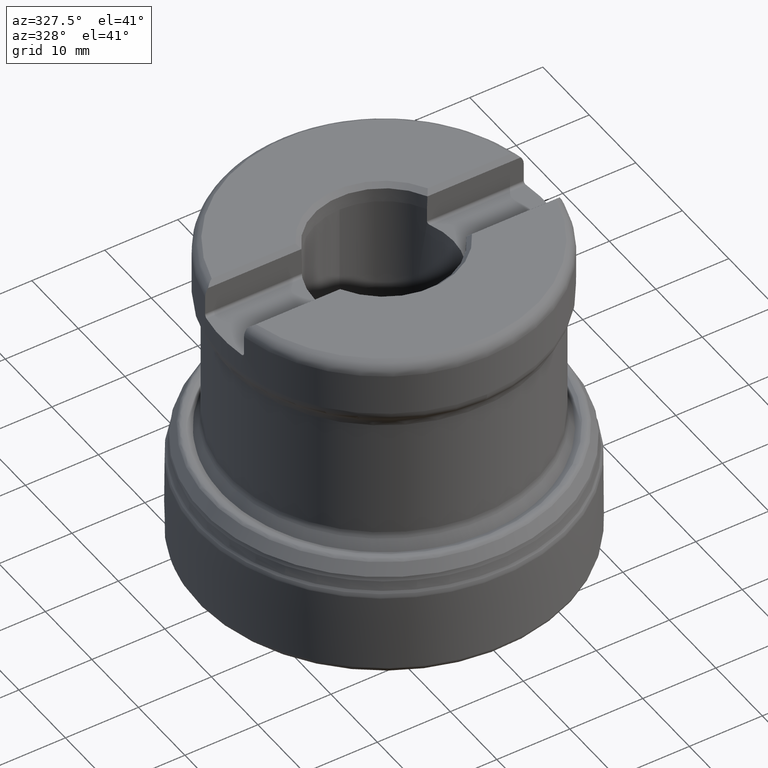
[diagram: clean part render]
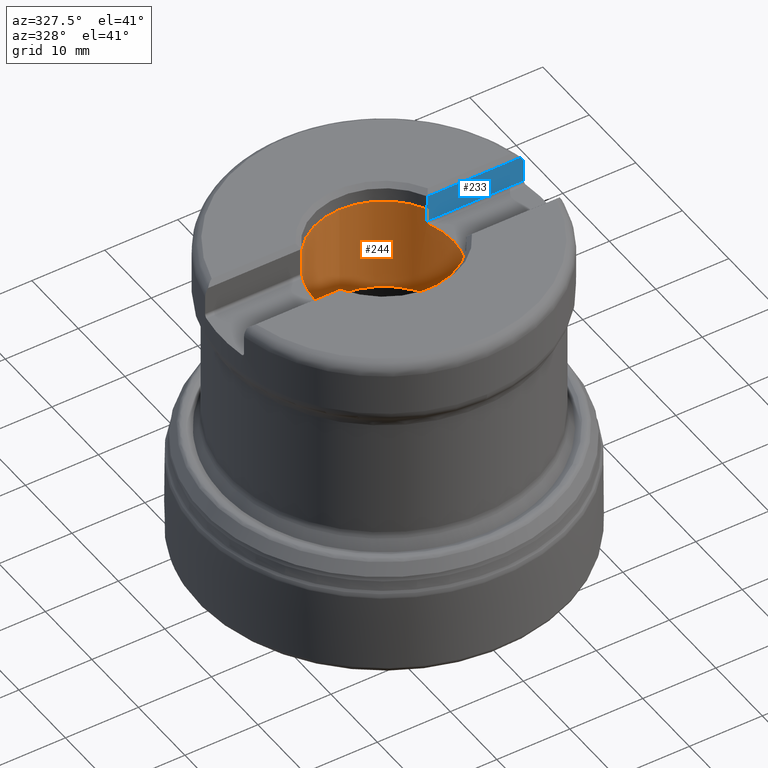
[diagram: same view with the hole feature highlighted: cylindrical wall and planar end face, labeled with their STEP entity ids]
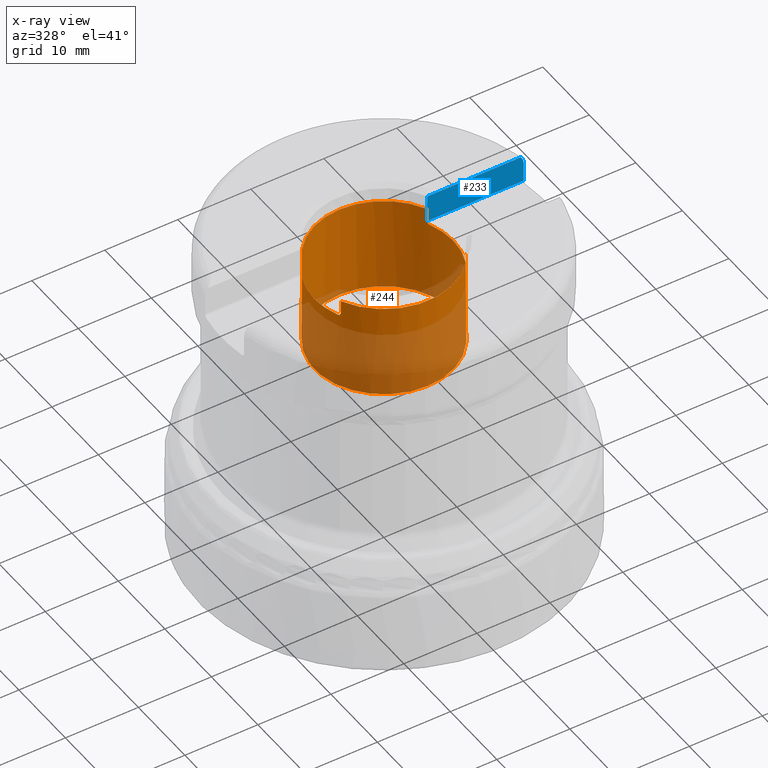
[diagram: x-ray of the same camera — body ghosted, the hole faces saturated]
A machine part, auxiliary view. The highlighted faces form one hole feature of diameter 19.05 mm: the cylindrical wall (entity #244, orange) and its adjacent planar end face (entity #233, blue) — they share a circular edge in the B-rep.
The next image is the same camera in x-ray (body ghosted, the hole faces saturated) — the bore reads through the body.
Wall:
#244=ADVANCED_FACE('',(#370,#371),#298,.F.);
#298=CYLINDRICAL_SURFACE('',#1184,9.525);
#311=LINE('',#2021,#338);
#314=LINE('',#2035,#341);
#320=LINE('',#2118,#347);
#325=LINE('',#2129,#352);
#338=VECTOR('',#1315,1.);
#341=VECTOR('',#1320,1.);
#347=VECTOR('',#1352,1.);
#352=VECTOR('',#1363,1.);
#370=FACE_BOUND('',#484,.T.);
#371=FACE_BOUND('',#485,.T.);
#484=EDGE_LOOP('',(#679));
#485=EDGE_LOOP('',(#680,#681,#682,#683,#684,#685,#686,#687,#688,#689,#690,
#691));
#679=ORIENTED_EDGE('',*,*,#969,.F.);
#680=ORIENTED_EDGE('',*,*,#942,.F.);
#681=ORIENTED_EDGE('',*,*,#951,.T.);
#682=ORIENTED_EDGE('',*,*,#966,.F.);
#683=ORIENTED_EDGE('',*,*,#967,.T.);
#684=ORIENTED_EDGE('',*,*,#962,.F.);
#685=ORIENTED_EDGE('',*,*,#968,.T.);
#686=ORIENTED_EDGE('',*,*,#938,.F.);
#687=ORIENTED_EDGE('',*,*,#946,.T.);
#688=ORIENTED_EDGE('',*,*,#960,.F.);
#689=ORIENTED_EDGE('',*,*,#956,.T.);
#690=ORIENTED_EDGE('',*,*,#953,.F.);
#691=ORIENTED_EDGE('',*,*,#955,.T.);
#841=VERTEX_POINT('',#2020);
#842=VERTEX_POINT('',#2022);
#844=VERTEX_POINT('',#2034);
#845=VERTEX_POINT('',#2036);
#847=VERTEX_POINT('',#2048);
#851=VERTEX_POINT('',#2064);
#852=VERTEX_POINT('',#2068);
#853=VERTEX_POINT('',#2070);
#854=VERTEX_POINT('',#2109);
#856=VERTEX_POINT('',#2121);
#857=VERTEX_POINT('',#2123);
#858=VERTEX_POINT('',#2128);
#859=VERTEX_POINT('',#2169);
#938=EDGE_CURVE('',#841,#842,#311,.T.);
#942=EDGE_CURVE('',#844,#845,#314,.T.);
#946=EDGE_CURVE('',#841,#847,#1030,.T.);
#951=EDGE_CURVE('',#844,#851,#1032,.T.);
#953=EDGE_CURVE('',#852,#853,#1033,.T.);
#955=EDGE_CURVE('',#852,#845,#1103,.T.);
#956=EDGE_CURVE('',#854,#853,#1104,.T.);
#960=EDGE_CURVE('',#854,#847,#320,.T.);
#962=EDGE_CURVE('',#856,#857,#1034,.T.);
#966=EDGE_CURVE('',#858,#851,#325,.T.);
#967=EDGE_CURVE('',#858,#857,#1106,.T.);
#968=EDGE_CURVE('',#856,#842,#1107,.T.);
#969=EDGE_CURVE('',#859,#859,#1035,.T.);
#1030=CIRCLE('',#1166,9.525);
#1032=CIRCLE('',#1171,9.525);
#1033=CIRCLE('',#1173,9.525);
#1034=CIRCLE('',#1178,9.525);
#1035=CIRCLE('',#1183,9.525);
#1103=B_SPLINE_CURVE_WITH_KNOTS('',3,(#2073,#2074,#2075,#2076,#2077,#2078,
#2079,#2080,#2081,#2082,#2083,#2084,#2085,#2086,#2087,#2088,#2089,#2090,
#2091),.UNSPECIFIED.,.F.,.F.,(4,3,3,3,3,3,4),(0.,0.0386594743957462,0.269044895788536,
0.48008110636278,0.673449817538789,0.857853975453466,1.),.UNSPECIFIED.);
#1104=B_SPLINE_CURVE_WITH_KNOTS('',3,(#2093,#2094,#2095,#2096,#2097,#2098,
#2099,#2100,#2101,#2102,#2103,#2104,#2105,#2106,#2107,#2108),
 .UNSPECIFIED.,.F.,.F.,(4,3,3,3,3,4),(0.,0.108413031410189,0.323007237368325,
0.558707803919921,0.801825649246487,1.),.UNSPECIFIED.);
#1106=B_SPLINE_CURVE_WITH_KNOTS('',3,(#2131,#2132,#2133,#2134,#2135,#2136,
#2137,#2138,#2139,#2140,#2141,#2142,#2143,#2144,#2145,#2146,#2147,#2148,
#2149),.UNSPECIFIED.,.F.,.F.,(4,3,3,3,3,3,4),(0.,0.0466914832213066,0.253760914020809,
0.483837973279793,0.726357143929704,0.965681344552278,1.),.UNSPECIFIED.);
#1107=B_SPLINE_CURVE_WITH_KNOTS('',3,(#2151,#2152,#2153,#2154,#2155,#2156,
#2157,#2158,#2159,#2160,#2161,#2162,#2163,#2164,#2165,#2166),
 .UNSPECIFIED.,.F.,.F.,(4,3,3,3,3,4),(0.,0.206937369334465,0.42350928604287,
0.620977371917134,0.810210906928369,1.),.UNSPECIFIED.);
#1166=AXIS2_PLACEMENT_3D('',#2049,#1326,#1327);
#1171=AXIS2_PLACEMENT_3D('',#2065,#1336,#1337);
#1173=AXIS2_PLACEMENT_3D('',#2069,#1341,#1342);
#1178=AXIS2_PLACEMENT_3D('',#2122,#1356,#1357);
#1183=AXIS2_PLACEMENT_3D('',#2168,#1370,#1371);
#1184=AXIS2_PLACEMENT_3D('',#2170,#1372,#1373);
#1315=DIRECTION('',(0.,-1.17145536458252E-15,-1.));
#1320=DIRECTION('',(0.,-1.17145536458252E-15,-1.));
#1326=DIRECTION('',(0.,1.17145536458252E-15,1.));
#1327=DIRECTION('',(0.,1.,-1.45698559662094E-15));
#1336=DIRECTION('',(0.,1.17145536458252E-15,1.));
#1337=DIRECTION('',(0.,1.,-1.45698559662094E-15));
#1341=DIRECTION('',(0.,-1.17145536458252E-15,-1.));
#1342=DIRECTION('',(0.,-1.,1.45698559662094E-15));
#1352=DIRECTION('',(0.,1.17145536458252E-15,1.));
#1356=DIRECTION('',(0.,-1.17145536458252E-15,-1.));
#1357=DIRECTION('',(0.,-1.,1.45698559662094E-15));
#1363=DIRECTION('',(0.,1.17145536458252E-15,1.));
#1370=DIRECTION('',(0.,1.17145536458252E-15,1.));
#1371=DIRECTION('',(0.,1.,-1.09273919746571E-15));
#1372=DIRECTION('',(0.,-1.17145536458252E-15,-1.));
#1373=DIRECTION('',(0.,1.,-1.45698559662094E-15));
#2020=CARTESIAN_POINT('',(-8.5612499087458,-4.17499999999995,41.95));
#2021=CARTESIAN_POINT('',(-8.5612499087458,-4.17499999999994,44.65));
#2022=CARTESIAN_POINT('',(-8.5612499087458,-4.17499999999995,40.1));
#2034=CARTESIAN_POINT('',(8.5612499087458,4.17500000000005,41.95));
#2035=CARTESIAN_POINT('',(8.5612499087458,4.17500000000005,44.65));
#2036=CARTESIAN_POINT('',(8.5612499087458,4.17500000000005,40.1));
#2048=CARTESIAN_POINT('',(8.5612499087458,-4.17499999999995,41.95));
#2049=CARTESIAN_POINT('',(0.,4.91425525442369E-14,41.95));
#2064=CARTESIAN_POINT('',(-8.5612499087458,4.17500000000005,41.95));
#2065=CARTESIAN_POINT('',(0.,4.91425525442369E-14,41.95));
#2068=CARTESIAN_POINT('',(8.74499857061166,3.77500000000005,39.7));
#2069=CARTESIAN_POINT('',(0.,4.65067779739262E-14,39.7));
#2070=CARTESIAN_POINT('',(8.74499857061166,-3.77499999999995,39.7));
#2073=CARTESIAN_POINT('',(8.74499857061166,3.77500000000005,39.7));
#2074=CARTESIAN_POINT('',(8.74161773161384,3.78283190257048,39.7));
#2075=CARTESIAN_POINT('',(8.73822513158495,3.79066209357223,39.7002301556307));
#2076=CARTESIAN_POINT('',(8.73482820236741,3.79847354540312,39.700689353177));
#2077=CARTESIAN_POINT('',(8.71475838019075,3.84462536051246,39.7034023956065));
#2078=CARTESIAN_POINT('',(8.69422372993682,3.89079669083713,39.7143109342927));
#2079=CARTESIAN_POINT('',(8.67485314955539,3.93351596331441,39.7327498272641));
#2080=CARTESIAN_POINT('',(8.65708541813785,3.97270036278943,39.7496629652033));
#2081=CARTESIAN_POINT('',(8.63988011341599,4.00991051466912,39.7733156854881));
#2082=CARTESIAN_POINT('',(8.62466260945896,4.04237799729329,39.8024953671563));
#2083=CARTESIAN_POINT('',(8.61070943589313,4.07214795310076,39.8292506855096));
#2084=CARTESIAN_POINT('',(8.59812510101883,4.09858614795706,39.8612783314609));
#2085=CARTESIAN_POINT('',(8.58808726251802,4.11951237058175,39.8967483665104));
#2086=CARTESIAN_POINT('',(8.57851751559993,4.1394627467961,39.9305643378047));
#2087=CARTESIAN_POINT('',(8.5710600955908,4.15483582076006,39.9683282752096));
#2088=CARTESIAN_POINT('',(8.56654084343706,4.16413292027584,40.0073956245222));
#2089=CARTESIAN_POINT('',(8.56305958611689,4.17129463523325,40.0374898726738));
#2090=CARTESIAN_POINT('',(8.5612499087458,4.17500000000005,40.0688700612677));
#2091=CARTESIAN_POINT('',(8.5612499087458,4.17500000000005,40.1));
#2093=CARTESIAN_POINT('',(8.5612499087458,-4.17499999999995,40.1));
#2094=CARTESIAN_POINT('',(8.5612499087458,-4.17499999999995,40.0759936956598));
#2095=CARTESIAN_POINT('',(8.56231721657189,-4.17281338993152,40.0518703742219));
#2096=CARTESIAN_POINT('',(8.56440253709577,-4.16852901904102,40.0283417054866));
#2097=CARTESIAN_POINT('',(8.56847608050347,-4.16015976808067,39.9823799205614));
#2098=CARTESIAN_POINT('',(8.57664126790243,-4.14336818386912,39.9375736915034));
#2099=CARTESIAN_POINT('',(8.58767300449023,-4.12037587702255,39.8982191694663));
#2100=CARTESIAN_POINT('',(8.59977961142934,-4.09514332914585,39.8550301642006));
#2101=CARTESIAN_POINT('',(8.61571094335503,-4.06163691019239,39.8168454300065));
#2102=CARTESIAN_POINT('',(8.63335500147313,-4.02378011558019,39.7867773091044));
#2103=CARTESIAN_POINT('',(8.65157338715885,-3.98469105338974,39.755730447902));
#2104=CARTESIAN_POINT('',(8.67218409589315,-3.93972891098107,39.7322348974642));
#2105=CARTESIAN_POINT('',(8.69308833455977,-3.89305024467197,39.7178166150486));
#2106=CARTESIAN_POINT('',(8.71015925998666,-3.8549312753903,39.7060422841187));
#2107=CARTESIAN_POINT('',(8.72780011334712,-3.81484118786622,39.7));
#2108=CARTESIAN_POINT('',(8.74499857061166,-3.77499999999995,39.7));
#2109=CARTESIAN_POINT('',(8.5612499087458,-4.17499999999995,40.1));
#2118=CARTESIAN_POINT('',(8.5612499087458,-4.17499999999994,44.65));
#2121=CARTESIAN_POINT('',(-8.74499857061166,-3.77499999999995,39.7));
#2122=CARTESIAN_POINT('',(0.,4.65067779739262E-14,39.7));
#2123=CARTESIAN_POINT('',(-8.74499857061166,3.77500000000005,39.7));
#2128=CARTESIAN_POINT('',(-8.5612499087458,4.17500000000005,40.1));
#2129=CARTESIAN_POINT('',(-8.5612499087458,4.17500000000005,44.65));
#2131=CARTESIAN_POINT('',(-8.5612499087458,4.17500000000005,40.1));
#2132=CARTESIAN_POINT('',(-8.5612499087458,4.17500000000005,40.0896736248158));
#2133=CARTESIAN_POINT('',(-8.56144537883928,4.17459923994743,40.0793377166004));
#2134=CARTESIAN_POINT('',(-8.5618346122326,4.17380079457275,40.0690496163484));
#2135=CARTESIAN_POINT('',(-8.56354187189124,4.17029864495977,40.0239238413631));
#2136=CARTESIAN_POINT('',(-8.56915472133485,4.15879922795195,39.9788623706117));
#2137=CARTESIAN_POINT('',(-8.57783474006711,4.14081829740187,39.9382070048301));
#2138=CARTESIAN_POINT('',(-8.58746440280293,4.12087014956783,39.893103708057));
#2139=CARTESIAN_POINT('',(-8.60116107532835,4.092314033702,39.8518346841028));
#2140=CARTESIAN_POINT('',(-8.61699604888934,4.05869487562515,39.8180120258875));
#2141=CARTESIAN_POINT('',(-8.63369742776434,4.0232362564909,39.7823387721724));
#2142=CARTESIAN_POINT('',(-8.65330146765013,3.98100721019216,39.7536524385155));
#2143=CARTESIAN_POINT('',(-8.67362944739407,3.93621356246061,39.7339259811476));
#2144=CARTESIAN_POINT('',(-8.69371916418443,3.8919449382161,39.7144307363278));
#2145=CARTESIAN_POINT('',(-8.71510374127138,3.84386899581254,39.7030544874384));
#2146=CARTESIAN_POINT('',(-8.73595305437244,3.79588582965837,39.7005456445106));
#2147=CARTESIAN_POINT('',(-8.73897393948732,3.7889334839529,39.7001821348726));
#2148=CARTESIAN_POINT('',(-8.7419908547179,3.78196754203759,39.7));
#2149=CARTESIAN_POINT('',(-8.74499857061166,3.77500000000005,39.7));
#2151=CARTESIAN_POINT('',(-8.74499857061166,-3.77499999999995,39.7));
#2152=CARTESIAN_POINT('',(-8.72705615190529,-3.81656461614314,39.7));
#2153=CARTESIAN_POINT('',(-8.708623644772,-3.858417385954,39.7065850754851));
#2154=CARTESIAN_POINT('',(-8.69085331574531,-3.89803715274732,39.7193927758912));
#2155=CARTESIAN_POINT('',(-8.67223181361914,-3.93955464915786,39.732813946652));
#2156=CARTESIAN_POINT('',(-8.65391245161983,-3.97956810046996,39.7534034130693));
#2157=CARTESIAN_POINT('',(-8.63738100061533,-4.0151306890572,39.780098058504));
#2158=CARTESIAN_POINT('',(-8.62229382929697,-4.04758633172243,39.8044605109498));
#2159=CARTESIAN_POINT('',(-8.60836386357536,-4.07705931876254,39.8344780066997));
#2160=CARTESIAN_POINT('',(-8.59684172875103,-4.10121168568567,39.868513637287));
#2161=CARTESIAN_POINT('',(-8.58580534059199,-4.12434584444939,39.9011144040829));
#2162=CARTESIAN_POINT('',(-8.57673929736884,-4.14311039443194,39.9382060452832));
#2163=CARTESIAN_POINT('',(-8.57063561903608,-4.15569850755679,39.9772455852362));
#2164=CARTESIAN_POINT('',(-8.56452187852568,-4.16830737273039,40.0163494835588));
#2165=CARTESIAN_POINT('',(-8.5612499087458,-4.17499999999995,40.0584611486916));
#2166=CARTESIAN_POINT('',(-8.5612499087458,-4.17499999999995,40.1));
#2168=CARTESIAN_POINT('',(0.,3.38550600364349E-14,28.9));
#2169=CARTESIAN_POINT('',(0.,9.52500000000004,28.9));
#2170=CARTESIAN_POINT('',(0.,5.23054820286097E-14,44.65));
End face:
#173=PLANE('',#1164);
#204=FACE_OUTER_BOUND('',#473,.T.);
#233=ADVANCED_FACE('',(#204),#173,.T.);
#305=LINE('',#1863,#332);
#313=LINE('',#2025,#340);
#314=LINE('',#2035,#341);
#315=LINE('',#2037,#342);
#332=VECTOR('',#1253,1.);
#340=VECTOR('',#1319,1.);
#341=VECTOR('',#1320,1.);
#342=VECTOR('',#1321,1.);
#473=EDGE_LOOP('',(#626,#627,#628,#629,#630,#631));
#626=ORIENTED_EDGE('',*,*,#914,.F.);
#627=ORIENTED_EDGE('',*,*,#940,.T.);
#628=ORIENTED_EDGE('',*,*,#941,.T.);
#629=ORIENTED_EDGE('',*,*,#942,.T.);
#630=ORIENTED_EDGE('',*,*,#943,.T.);
#631=ORIENTED_EDGE('',*,*,#904,.F.);
#812=VERTEX_POINT('',#1862);
#813=VERTEX_POINT('',#1864);
#821=VERTEX_POINT('',#1934);
#843=VERTEX_POINT('',#2026);
#844=VERTEX_POINT('',#2034);
#845=VERTEX_POINT('',#2036);
#904=EDGE_CURVE('',#812,#813,#305,.T.);
#914=EDGE_CURVE('',#821,#812,#1095,.T.);
#940=EDGE_CURVE('',#821,#843,#313,.T.);
#941=EDGE_CURVE('',#843,#844,#1100,.T.);
#942=EDGE_CURVE('',#844,#845,#314,.T.);
#943=EDGE_CURVE('',#845,#813,#315,.T.);
#1095=B_SPLINE_CURVE_WITH_KNOTS('',3,(#1935,#1936,#1937,#1938,#1939,#1940,
#1941,#1942,#1943,#1944),.UNSPECIFIED.,.F.,.F.,(4,3,3,4),(0.,0.376771023747929,
0.898711731857338,1.),.UNSPECIFIED.);
#1100=B_SPLINE_CURVE_WITH_KNOTS('',3,(#2027,#2028,#2029,#2030,#2031,#2032,
#2033),.UNSPECIFIED.,.F.,.F.,(4,3,4),(0.,0.319105956427458,1.),
 .UNSPECIFIED.);
#1164=AXIS2_PLACEMENT_3D('',#2038,#1322,#1323);
#1253=DIRECTION('',(0.,-1.17145536458252E-15,-1.));
#1319=DIRECTION('',(-1.,0.,0.));
#1320=DIRECTION('',(0.,-1.17145536458252E-15,-1.));
#1321=DIRECTION('',(1.,0.,0.));
#1322=DIRECTION('',(0.,-1.,1.0788137769871E-15));
#1323=DIRECTION('',(0.,-1.07899800205757E-15,-1.));
#1862=CARTESIAN_POINT('',(21.8293380568446,4.17500000000005,42.65));
#1863=CARTESIAN_POINT('',(21.8293380568445,4.17500000000001,-4.50404751892114E-15));
#1864=CARTESIAN_POINT('',(21.8293380568445,4.17500000000005,40.1));
#1934=CARTESIAN_POINT('',(21.4219513583614,4.17500000000005,43.85));
#1935=CARTESIAN_POINT('',(21.4219513583614,4.17500000000005,43.85));
#1936=CARTESIAN_POINT('',(21.5199407292163,4.17500000000005,43.7217603032552));
#1937=CARTESIAN_POINT('',(21.6029074456128,4.17500000000005,43.5805388619185));
#1938=CARTESIAN_POINT('',(21.6670259304722,4.17500000000005,43.4324302648652));
#1939=CARTESIAN_POINT('',(21.7557647652759,4.17500000000005,43.2274506188902));
#1940=CARTESIAN_POINT('',(21.8100320221803,4.17500000000005,43.0040800576923));
#1941=CARTESIAN_POINT('',(21.8249509282185,4.17500000000005,42.7812153850567));
#1942=CARTESIAN_POINT('',(21.82787394264,4.17500000000005,42.7375502094418));
#1943=CARTESIAN_POINT('',(21.8293380568446,4.17500000000005,42.6937629018096));
#1944=CARTESIAN_POINT('',(21.8293380568446,4.17500000000005,42.65));
#2025=CARTESIAN_POINT('',(8.65827484392424,4.17500000000005,43.85));
#2026=CARTESIAN_POINT('',(8.63500778823424,4.17500000000005,43.85));
#2027=CARTESIAN_POINT('',(8.63500778823424,4.17500000000005,43.85));
#2028=CARTESIAN_POINT('',(8.62716864541453,4.17500000000005,43.647899312624));
#2029=CARTESIAN_POINT('',(8.61932748300588,4.17500000000005,43.4457987035741));
#2030=CARTESIAN_POINT('',(8.6114842844197,4.17500000000005,43.2436981735551));
#2031=CARTESIAN_POINT('',(8.5947488175009,4.17500000000005,42.8124650870485));
#2032=CARTESIAN_POINT('',(8.57800408030153,4.17500000000005,42.3812323602033));
#2033=CARTESIAN_POINT('',(8.5612499087458,4.17500000000005,41.95));
#2034=CARTESIAN_POINT('',(8.5612499087458,4.17500000000005,41.95));
#2035=CARTESIAN_POINT('',(8.5612499087458,4.17500000000005,44.65));
#2036=CARTESIAN_POINT('',(8.5612499087458,4.17500000000005,40.1));
#2037=CARTESIAN_POINT('',(27.,4.17500000000005,40.1));
#2038=CARTESIAN_POINT('',(27.,4.17500000000005,39.7));